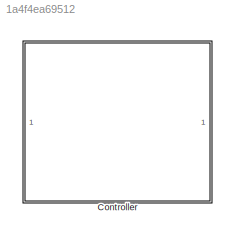
MODEL slx_1a4f4ea69512
KIND model
CONFIG AbsTol = auto
CONFIG EnableMultiTasking = off
CONFIG FixedStep = auto
CONFIG MaxStep = auto
CONFIG MinStep = auto
CONFIG RelTol = 1e-3
CONFIG SampleTimeConstraint = Unconstrained
CONFIG SolverName = VariableStepAuto
CONFIG StartTime = 0.0
CONFIG StopTime = 10.0
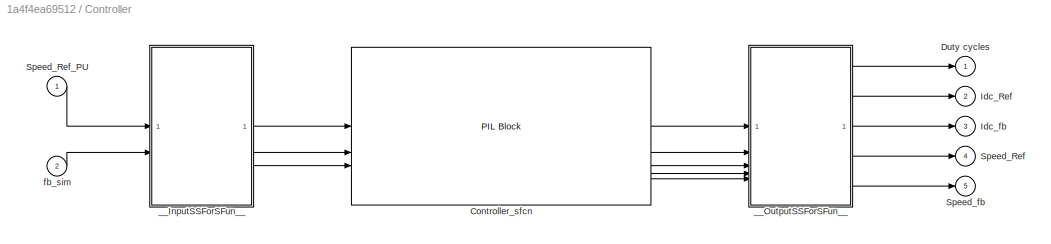
BLOCK [SubSystem] Controller
  DialogController = pil_create_dialog
  LoadFcn = try\n   if ~strcmp(rtw.pil.getPILVersion, '23.2 (R2023b)_15')\n      set_param(gcb, 'DialogController', '');\n      set_param(gcb, 'DialogControllerArgs', '');\n   end\ncatch e\n      set_param(gcb, 'DialogController', '');\n      set_param(gcb, 'DialogControllerArgs', '');\nend
BLOCK [Reference] Controller/Controller_sfcn  REF=pil_lib/PIL Block
  SourceBlock = pil_lib/PIL Block
  SourceType = XILBlock
BLOCK [Outport] Controller/Duty cycles
BLOCK [Outport] Controller/Idc_Ref
  Port = 2
BLOCK [Outport] Controller/Idc_fb
  Port = 3
BLOCK [Outport] Controller/Speed_Ref
  Port = 4
BLOCK [Inport] Controller/Speed_Ref_PU
BLOCK [Outport] Controller/Speed_fb
  Port = 5
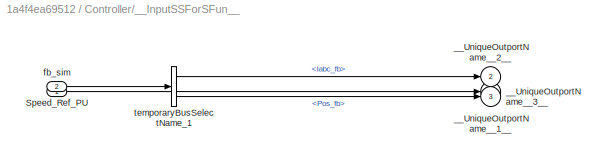
BLOCK [SubSystem] Controller/__InputSSForSFun__
  PermitHierarchicalResolution = ExplicitOnly
BLOCK [Inport] Controller/__InputSSForSFun__/Speed_Ref_PU
BLOCK [Outport] Controller/__InputSSForSFun__/__UniqueOutportName__1__
BLOCK [Outport] Controller/__InputSSForSFun__/__UniqueOutportName__2__
  Port = 2
BLOCK [Outport] Controller/__InputSSForSFun__/__UniqueOutportName__3__
  Port = 3
BLOCK [Inport] Controller/__InputSSForSFun__/fb_sim
  Port = 2
BLOCK [BusSelector] Controller/__InputSSForSFun__/temporaryBusSelectName_1
  OutputSignals = Iabc_fb,Pos_fb
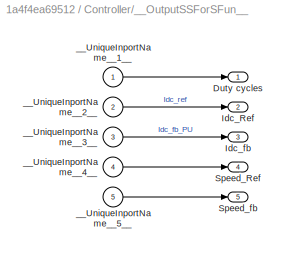
BLOCK [SubSystem] Controller/__OutputSSForSFun__
  PermitHierarchicalResolution = ExplicitOnly
BLOCK [Outport] Controller/__OutputSSForSFun__/Duty cycles
BLOCK [Outport] Controller/__OutputSSForSFun__/Idc_Ref
  Port = 2
BLOCK [Outport] Controller/__OutputSSForSFun__/Idc_fb
  Port = 3
BLOCK [Outport] Controller/__OutputSSForSFun__/Speed_Ref
  Port = 4
BLOCK [Outport] Controller/__OutputSSForSFun__/Speed_fb
  Port = 5
BLOCK [Inport] Controller/__OutputSSForSFun__/__UniqueInportName__1__
BLOCK [Inport] Controller/__OutputSSForSFun__/__UniqueInportName__2__
  Port = 2
BLOCK [Inport] Controller/__OutputSSForSFun__/__UniqueInportName__3__
  Port = 3
BLOCK [Inport] Controller/__OutputSSForSFun__/__UniqueInportName__4__
  Port = 4
BLOCK [Inport] Controller/__OutputSSForSFun__/__UniqueInportName__5__
  Port = 5
BLOCK [Inport] Controller/fb_sim
  Port = 2
LINE Controller/Controller_sfcn:1 -> Controller/__OutputSSForSFun__:1
LINE Controller/Controller_sfcn:2 -> Controller/__OutputSSForSFun__:2
LINE Controller/Controller_sfcn:3 -> Controller/__OutputSSForSFun__:3
LINE Controller/Controller_sfcn:4 -> Controller/__OutputSSForSFun__:4
LINE Controller/Controller_sfcn:5 -> Controller/__OutputSSForSFun__:5
LINE Controller/Speed_Ref_PU:1 -> Controller/__InputSSForSFun__:1
LINE Controller/__InputSSForSFun__/Speed_Ref_PU:1 -> Controller/__InputSSForSFun__/__UniqueOutportName__1__:1
LINE Controller/__InputSSForSFun__/fb_sim:1 -> Controller/__InputSSForSFun__/temporaryBusSelectName_1:1
LINE Controller/__InputSSForSFun__/temporaryBusSelectName_1:1 -> Controller/__InputSSForSFun__/__UniqueOutportName__2__:1
LINE Controller/__InputSSForSFun__/temporaryBusSelectName_1:2 -> Controller/__InputSSForSFun__/__UniqueOutportName__3__:1
LINE Controller/__InputSSForSFun__:1 -> Controller/Controller_sfcn:1
LINE Controller/__InputSSForSFun__:2 -> Controller/Controller_sfcn:2
LINE Controller/__InputSSForSFun__:3 -> Controller/Controller_sfcn:3
LINE Controller/__OutputSSForSFun__/__UniqueInportName__1__:1 -> Controller/__OutputSSForSFun__/Duty cycles:1
LINE Controller/__OutputSSForSFun__/__UniqueInportName__2__:1 -> Controller/__OutputSSForSFun__/Idc_Ref:1
LINE Controller/__OutputSSForSFun__/__UniqueInportName__3__:1 -> Controller/__OutputSSForSFun__/Idc_fb:1
LINE Controller/__OutputSSForSFun__/__UniqueInportName__4__:1 -> Controller/__OutputSSForSFun__/Speed_Ref:1
LINE Controller/__OutputSSForSFun__/__UniqueInportName__5__:1 -> Controller/__OutputSSForSFun__/Speed_fb:1
LINE Controller/__OutputSSForSFun__:1 -> Controller/Duty cycles:1
LINE Controller/__OutputSSForSFun__:2 -> Controller/Idc_Ref:1
LINE Controller/__OutputSSForSFun__:3 -> Controller/Idc_fb:1
LINE Controller/__OutputSSForSFun__:4 -> Controller/Speed_Ref:1
LINE Controller/__OutputSSForSFun__:5 -> Controller/Speed_fb:1
LINE Controller/fb_sim:1 -> Controller/__InputSSForSFun__:2
